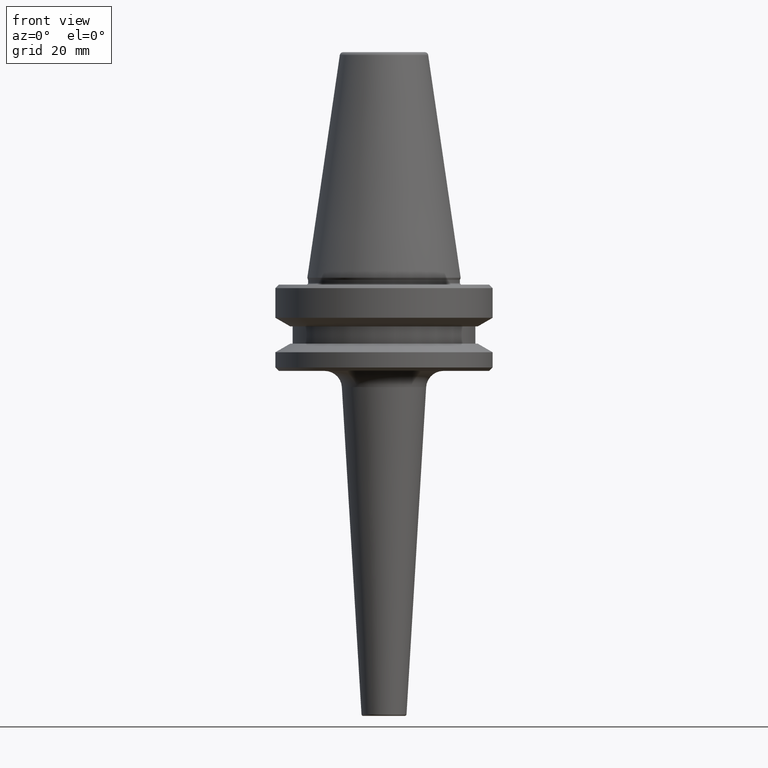
[diagram: clean part render]
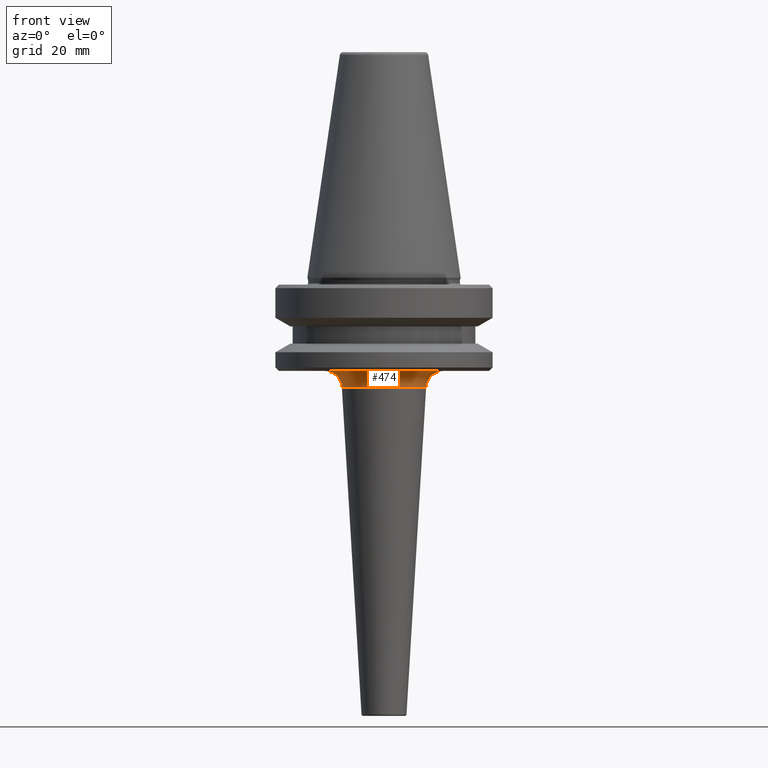
[diagram: same view with one face highlighted and labeled with its STEP entity id]
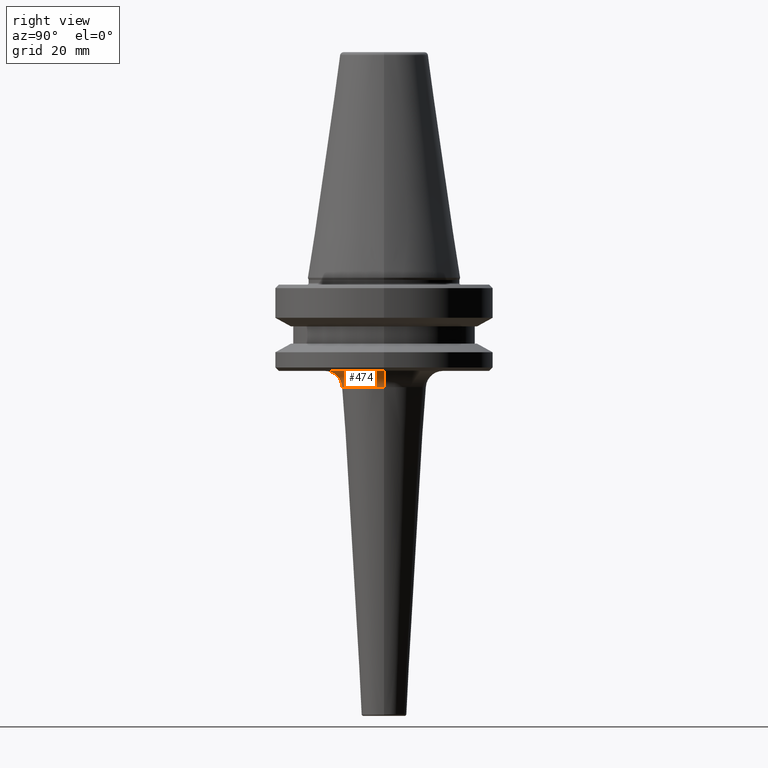
[diagram: same view with one face highlighted and labeled with its STEP entity id]
A machine part, front view. The second image highlights one B-rep face of the part: STEP entity #474.
A second angle (right view) of the same face is appended — the face is thin or edge-on in the first view.
In plain terms, the highlighted toroidal blend (fillet) surface has major radius 17.209 mm and minor (blend) radius 5 mm.
Its self-contained STEP definition (entity closure, byte-faithful):
#21 = CARTESIAN_POINT ( 'NONE',  ( 0.0000000000000000000, 0.0000000000000000000, -97.10053854636835500 ) ) ;
#59 = VERTEX_POINT ( 'NONE', #1002 ) ;
#60 = ORIENTED_EDGE ( 'NONE', *, *, #120, .F. ) ;
#65 = AXIS2_PLACEMENT_3D ( 'NONE', #720, #341, #121 ) ;
#77 = FACE_OUTER_BOUND ( 'NONE', #379, .T. ) ;
#93 = AXIS2_PLACEMENT_3D ( 'NONE', #21, #1000, #665 ) ;
#120 = EDGE_CURVE ( 'NONE', #505, #525, #493, .T. ) ;
#121 = DIRECTION ( 'NONE',  ( 1.000000000000000000, 0.0000000000000000000, 0.0000000000000000000 ) ) ;
#185 = CIRCLE ( 'NONE', #65, 17.20899191454727600 ) ;
#237 = DIRECTION ( 'NONE',  ( 1.224646799147353200E-016, 1.000000000000000000, 0.0000000000000000000 ) ) ;
#250 = DIRECTION ( 'NONE',  ( 0.0000000000000000000, 0.0000000000000000000, -1.000000000000000000 ) ) ;
#265 = EDGE_CURVE ( 'NONE', #288, #59, #878, .T. ) ;
#275 = CARTESIAN_POINT ( 'NONE',  ( -17.20899191454727600, 2.107493686470300200E-015, -97.40000000000809200 ) ) ;
#288 = VERTEX_POINT ( 'NONE', #1021 ) ;
#292 = TOROIDAL_SURFACE ( 'NONE', #620, 17.20899191454727600, 5.000000000000000000 ) ;
#333 = DIRECTION ( 'NONE',  ( -0.0000000000000000000, -0.0000000000000000000, 1.000000000000000000 ) ) ;
#341 = DIRECTION ( 'NONE',  ( -0.0000000000000000000, -0.0000000000000000000, 1.000000000000000000 ) ) ;
#379 = EDGE_LOOP ( 'NONE', ( #483, #417, #671, #60 ) ) ;
#405 = AXIS2_PLACEMENT_3D ( 'NONE', #811, #502, #250 ) ;
#417 = ORIENTED_EDGE ( 'NONE', *, *, #265, .T. ) ;
#458 = DIRECTION ( 'NONE',  ( 1.000000000000000000, 0.0000000000000000000, 0.0000000000000000000 ) ) ;
#474 = ADVANCED_FACE ( 'NONE', ( #77 ), #292, .F. ) ;
#483 = ORIENTED_EDGE ( 'NONE', *, *, #726, .F. ) ;
#493 = CIRCLE ( 'NONE', #405, 5.000000000000004400 ) ;
#502 = DIRECTION ( 'NONE',  ( 0.0000000000000000000, -1.000000000000000000, 0.0000000000000000000 ) ) ;
#505 = VERTEX_POINT ( 'NONE', #985 ) ;
#525 = VERTEX_POINT ( 'NONE', #926 ) ;
#549 = CARTESIAN_POINT ( 'NONE',  ( 0.0000000000000000000, 0.0000000000000000000, -97.40000000000809200 ) ) ;
#620 = AXIS2_PLACEMENT_3D ( 'NONE', #549, #333, #458 ) ;
#665 = DIRECTION ( 'NONE',  ( 1.000000000000000000, 0.0000000000000000000, 0.0000000000000000000 ) ) ;
#671 = ORIENTED_EDGE ( 'NONE', *, *, #970, .T. ) ;
#689 = CIRCLE ( 'NONE', #93, 12.21796768721838900 ) ;
#720 = CARTESIAN_POINT ( 'NONE',  ( 0.0000000000000000000, 0.0000000000000000000, -92.40000000000809200 ) ) ;
#726 = EDGE_CURVE ( 'NONE', #288, #505, #185, .T. ) ;
#811 = CARTESIAN_POINT ( 'NONE',  ( 17.20899191454727600, 0.0000000000000000000, -97.40000000000809200 ) ) ;
#832 = DIRECTION ( 'NONE',  ( -1.000000000000000000, 1.224646799147352700E-016, 0.0000000000000000000 ) ) ;
#846 = AXIS2_PLACEMENT_3D ( 'NONE', #275, #237, #832 ) ;
#878 = CIRCLE ( 'NONE', #846, 5.000000000000000900 ) ;
#926 = CARTESIAN_POINT ( 'NONE',  ( 12.21796768721838900, 0.0000000000000000000, -97.10053854636835500 ) ) ;
#970 = EDGE_CURVE ( 'NONE', #59, #525, #689, .T. ) ;
#985 = CARTESIAN_POINT ( 'NONE',  ( 17.20899191454727600, 0.0000000000000000000, -92.40000000000809200 ) ) ;
#1000 = DIRECTION ( 'NONE',  ( -0.0000000000000000000, -0.0000000000000000000, 1.000000000000000000 ) ) ;
#1002 = CARTESIAN_POINT ( 'NONE',  ( -12.21796768721839000, 1.801881594247039500E-015, -97.10053854636835500 ) ) ;
#1021 = CARTESIAN_POINT ( 'NONE',  ( -17.20899191454727600, 2.107493686470300200E-015, -92.40000000000809200 ) ) ;